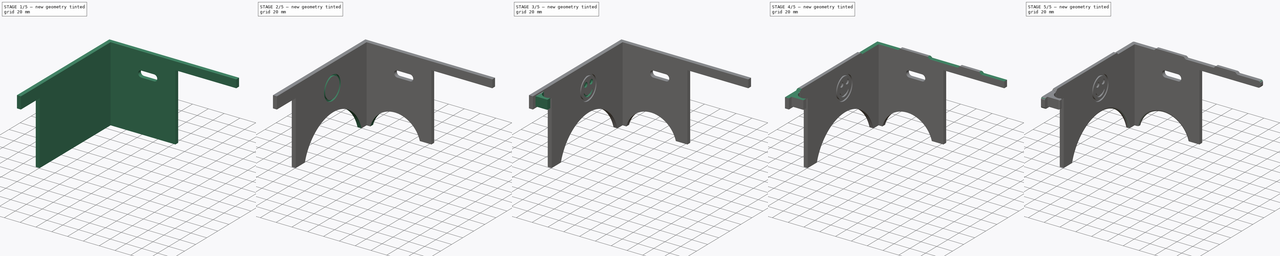
[diagram: build sequence overview — one tinted view per stage of 5, left to right]
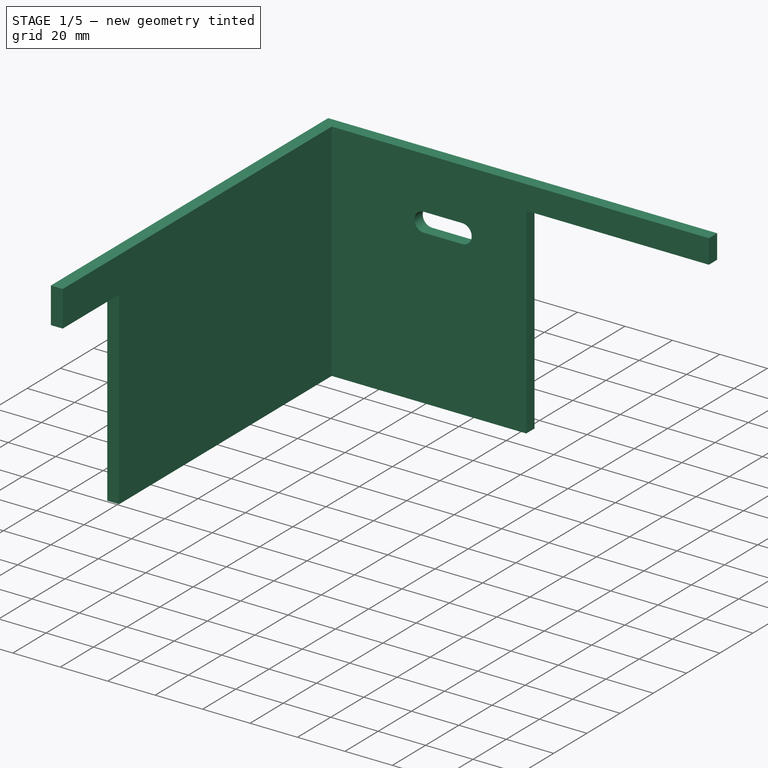
[diagram: stage 1 of 5 — iso view after this stage's code; geometry added in this stage tinted green]
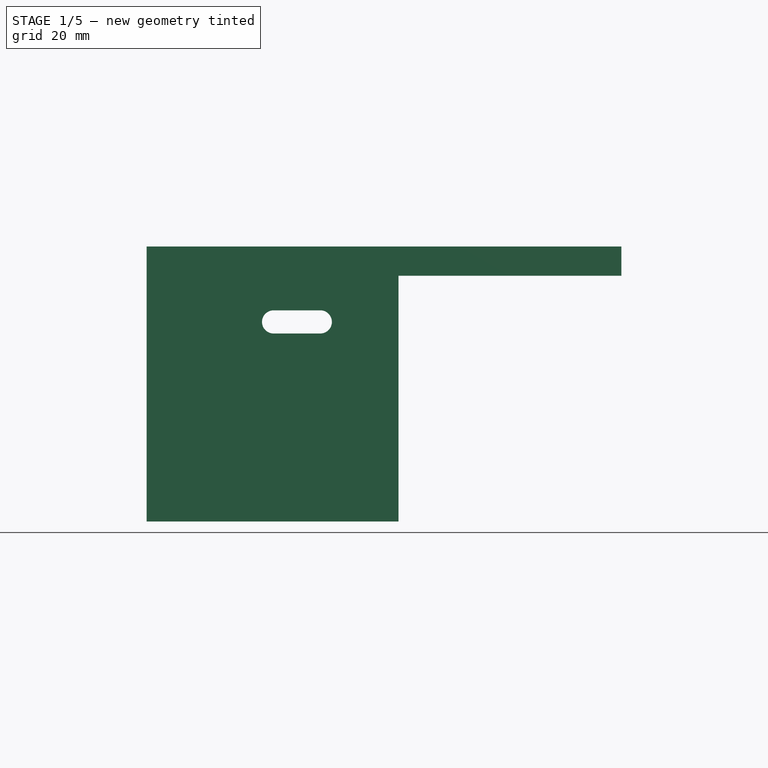
[diagram: stage 1 of 5 — front view after this stage's code; geometry added in this stage tinted green]
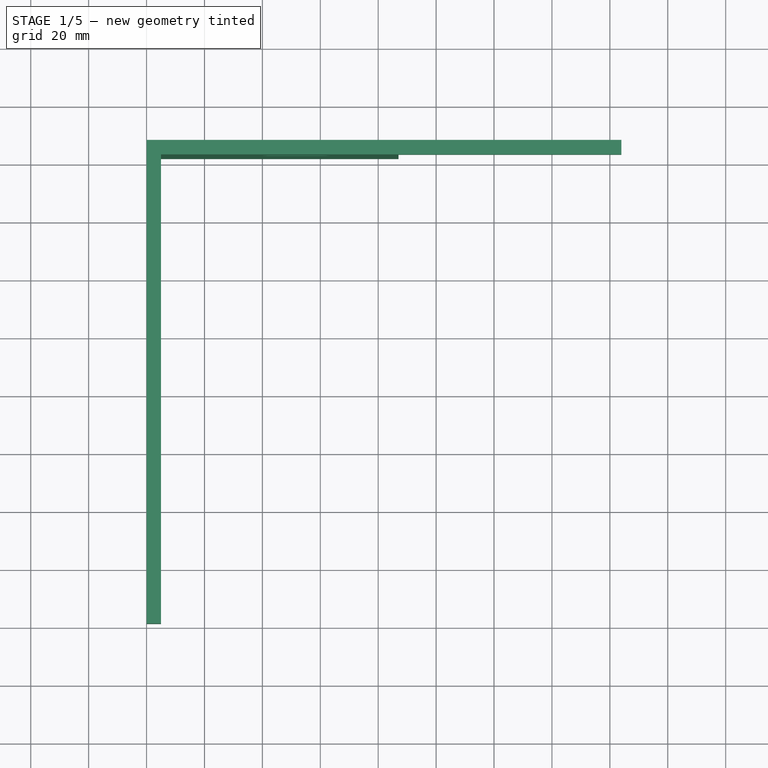
[diagram: stage 1 of 5 — top view after this stage's code; geometry added in this stage tinted green]
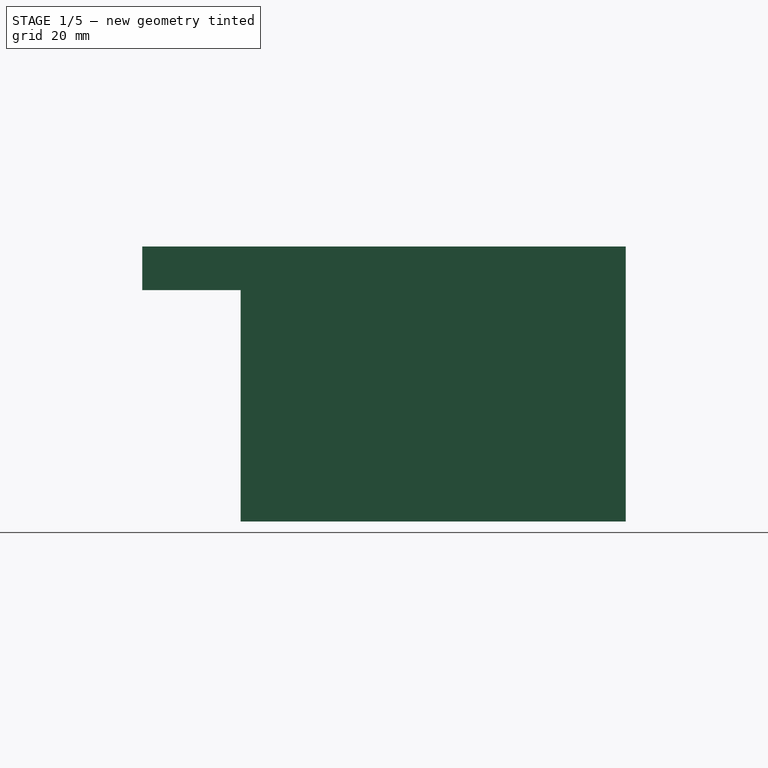
[diagram: stage 1 of 5 — right view after this stage's code; geometry added in this stage tinted green]
FCSTD DOCUMENT  (FreeCAD 0.17R8489 (Git))
Label: Taz6_Control_Box_Tie_Down_Jig_v1.1
License: All rights reserved
LicenseURL: http://en.wikipedia.org/wiki/All_rights_reserved
objects: Sketcher::SketchObject×13, PartDesign::Pocket×12, PartDesign::Fillet×5, PartDesign::Pad×2, Part::Part2DObjectPython×1, PartDesign::Chamfer×1, PartDesign::Body×1
note: 49 computed .brp shape members not serialized (recipe doc carries the construction recipe); baked Part::Feature solids carry a one-line shape summary decoded from their .brp

FEATURE [Sketcher::SketchObject] Sketch
  MapMode = 5
  Support = -> [XY_Plane]
  sketch-geometry (6):
    g0: LineSegment StartX=0 StartY=0 StartZ=0 EndX=5 EndY=0 EndZ=0
    g1: LineSegment StartX=5 StartY=0 StartZ=0 EndX=5 EndY=162 EndZ=0
    g2: LineSegment StartX=0 StartY=167 StartZ=0 EndX=0 EndY=0 EndZ=0
    g3: LineSegment StartX=0 StartY=167 StartZ=0 EndX=164 EndY=167 EndZ=0
    g4: LineSegment StartX=164 StartY=167 StartZ=0 EndX=164 EndY=162 EndZ=0
    g5: LineSegment StartX=164 StartY=162 StartZ=0 EndX=5 EndY=162 EndZ=0
  constraints (17):
    c: Coincident(g0,g1)
    c: Coincident(g2,g0)
    c: Horizontal(g0)
    c: Vertical(g1)
    c: Vertical(g2)
    c: Distance(g2) = 167
    c: Coincident(g0,g-1)
    c: Distance(g0) = 5
    c: Coincident(g3,g4)
    c: Coincident(g4,g5)
    c: Horizontal(g3)
    c: Horizontal(g5)
    c: Vertical(g4)
    c: Distance(g4) = 5
    c: Coincident(g1,g5)
    c: Coincident(g2,g3)
    c: Distance(g3) = 164
FEATURE [PartDesign::Pad] Pad
  Length = 95
  Length2 = 100
  Profile = -> Sketch
  Type = 0
FEATURE [Sketcher::SketchObject] Sketch001
  MapMode = 5
  Placement = pos=(0,0,0) rot=(0.57735,-0.57735,-0.57735;2.0944rad)
  Support = -> [Pad]
  sketch-geometry (4):
    g0: LineSegment StartX=1 StartY=79.91 StartZ=0 EndX=-34 EndY=79.91 EndZ=0
    g1: LineSegment StartX=-34 StartY=79.91 StartZ=0 EndX=-34 EndY=-10.09 EndZ=0
    g2: LineSegment StartX=-34 StartY=-10.09 StartZ=0 EndX=1 EndY=-10.09 EndZ=0
    g3: LineSegment StartX=1 StartY=-10.09 StartZ=0 EndX=1 EndY=79.91 EndZ=0
  constraints (12):
    c: Coincident(g0,g1)
    c: Coincident(g1,g2)
    c: Coincident(g2,g3)
    c: Coincident(g3,g0)
    c: Horizontal(g0)
    c: Horizontal(g2)
    c: Vertical(g1)
    c: Vertical(g3)
    c: Distance(g0) = 35
    c: Distance(g1) = 90
    c: DistanceX(g0) = -34
    c: DistanceY(g0) = 79.91
FEATURE [PartDesign::Pocket] Pocket
  Length = 5
  Profile = -> Sketch001
  Type = 0
FEATURE [Sketcher::SketchObject] Sketch002
  MapMode = 5
  Placement = pos=(0,162,0) rot=(1,0,0;1.5708rad)
  Support = -> [Pocket]
  sketch-geometry (4):
    g0: LineSegment StartX=167 StartY=84.89 StartZ=0 EndX=87 EndY=84.89 EndZ=0
    g1: LineSegment StartX=87 StartY=84.89 StartZ=0 EndX=87 EndY=-10.11 EndZ=0
    g2: LineSegment StartX=87 StartY=-10.11 StartZ=0 EndX=167 EndY=-10.11 EndZ=0
    g3: LineSegment StartX=167 StartY=-10.11 StartZ=0 EndX=167 EndY=84.89 EndZ=0
  constraints (12):
    c: Coincident(g0,g1)
    c: Coincident(g1,g2)
    c: Coincident(g2,g3)
    c: Coincident(g3,g0)
    c: Horizontal(g0)
    c: Horizontal(g2)
    c: Vertical(g1)
    c: Vertical(g3)
    c: Distance(g3) = 95
    c: Distance(g0) = 80
    c: DistanceX(g0) = 87
    c: DistanceY(g0) = 84.89
FEATURE [PartDesign::Pocket] Pocket001
  BaseFeature = -> Pocket
  Length = 5
  Profile = -> Sketch002
  Type = 0
FEATURE [Sketcher::SketchObject] Sketch003
  MapMode = 5
  Placement = pos=(0,167,0) rot=(0,0.707107,0.707107;3.14159rad)
  sketch-geometry (4):
    g0: ArcOfCircle CenterX=-60 CenterY=68.94 CenterZ=0 NormalX=0 NormalY=0 NormalZ=1 Radius=4 StartAngle=1.57079 EndAngle=4.71239
    g1: ArcOfCircle CenterX=-43.869 CenterY=68.94 CenterZ=0 NormalX=0 NormalY=0 NormalZ=1 Radius=4 StartAngle=4.71239 EndAngle=7.85398
    g2: LineSegment StartX=-60 StartY=72.94 StartZ=0 EndX=-43.869 EndY=72.94 EndZ=0
    g3: LineSegment StartX=-43.869 StartY=64.94 StartZ=0 EndX=-60 EndY=64.94 EndZ=0
  constraints (13):
    c: Radius(g1) = 4
    c: Radius(g0) = 4
    c: Horizontal(g2)
    c: Tangent(g2,g1)
    c: Horizontal(g3)
    c: Tangent(g3,g1)
    c: DistanceX(g0) = -60
    c: DistanceY(g0) = 68.94
    c: Equal(g3,g2)
    c: Coincident(g0,g2)
    c: Coincident(g0,g3)
    c: Coincident(g1,g3)
    c: Coincident(g1,g2)
FEATURE [Part::Part2DObjectPython] ShapeString  # Draft 2D object (typed FeaturePython)
  FontFile = <userpath>/Desktop/Titillium-BoldUpright.otf
  Placement = pos=(0,153.4,67) rot=(0.57735,-0.57735,-0.57735;2.0944rad)
  Size = 3
  String = TAZ6_Control_Box_Tie_Down_Jig
  Tracking = 0
FEATURE [PartDesign::Pocket] Pocket002
  BaseFeature = -> Pocket001
  Length = 5
  Profile = -> Sketch003
  Type = 0
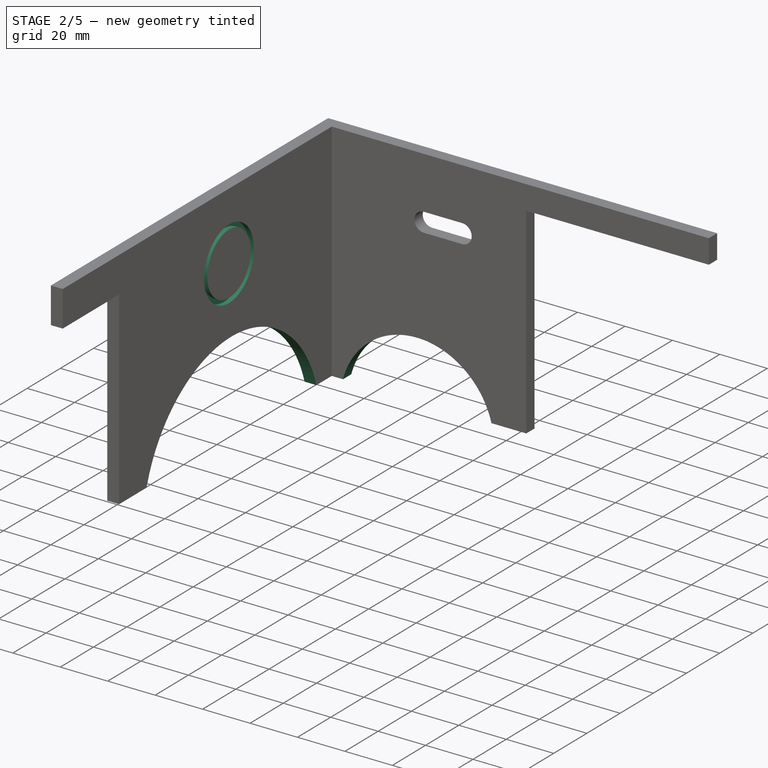
[diagram: stage 2 of 5 — iso view after this stage's code; geometry added in this stage tinted green]
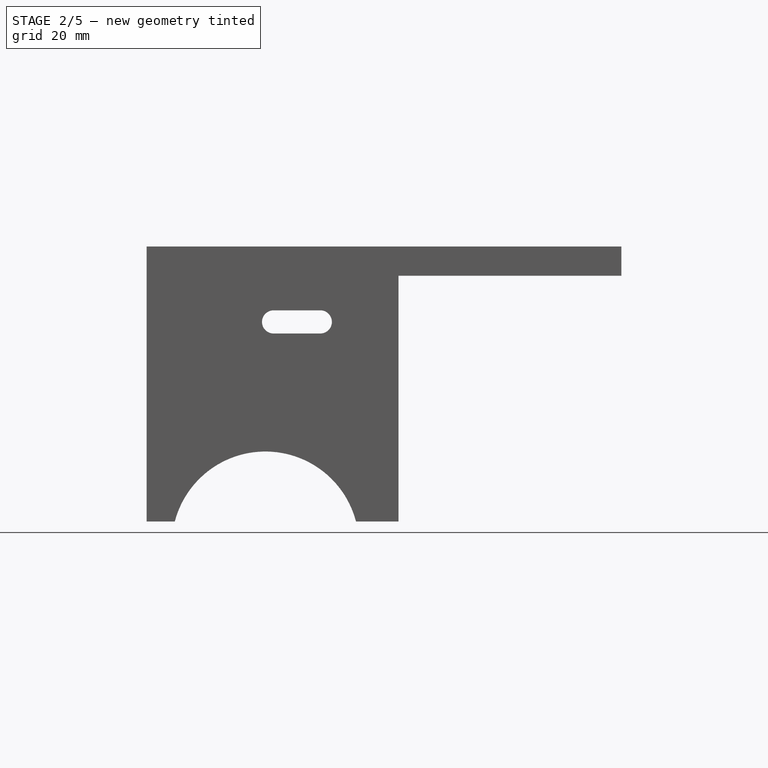
[diagram: stage 2 of 5 — front view after this stage's code; geometry added in this stage tinted green]
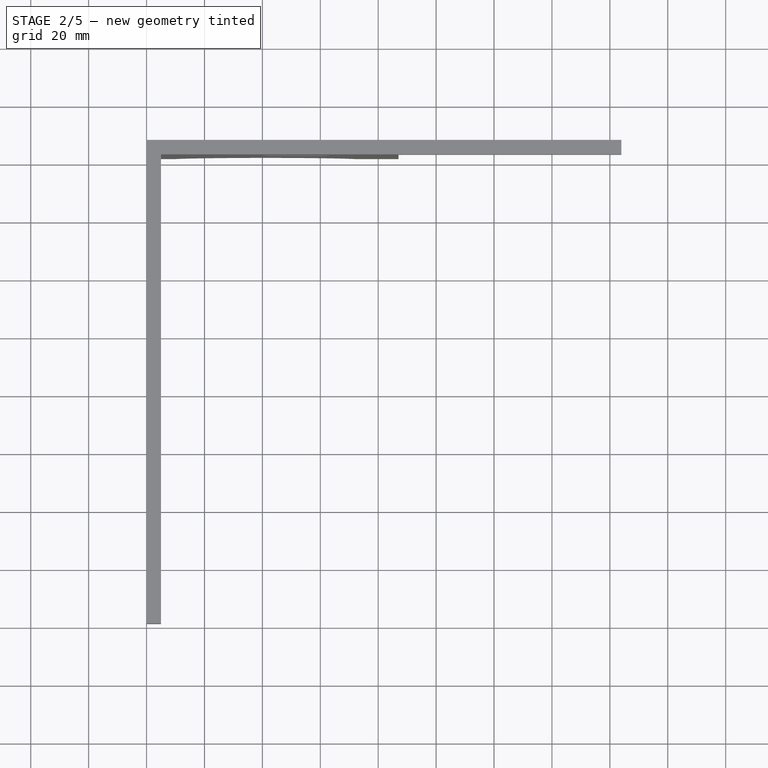
[diagram: stage 2 of 5 — top view after this stage's code; geometry added in this stage tinted green]
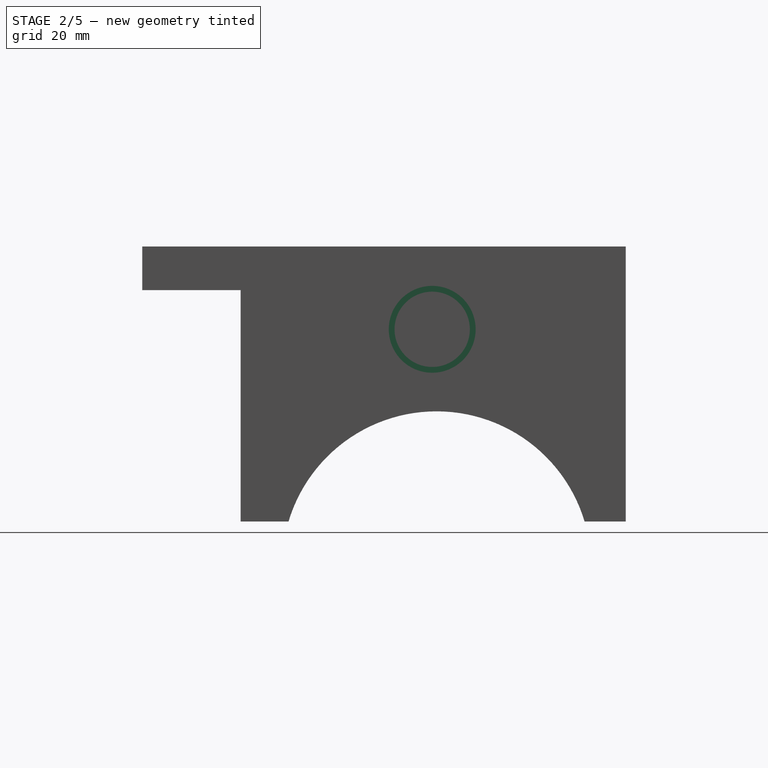
[diagram: stage 2 of 5 — right view after this stage's code; geometry added in this stage tinted green]
FEATURE [PartDesign::Pocket] Pocket003
  BaseFeature = -> Pocket002
  Length = 2
  Profile = -> ShapeString
  Type = 0
FEATURE [Sketcher::SketchObject] Sketch004
  MapMode = 5
  Placement = pos=(0,167,0) rot=(0,0.707107,0.707107;3.14159rad)
  Support = -> [Pocket003]
  sketch-geometry (1):
    g0: Circle CenterX=-41.0416 CenterY=-8.14889 CenterZ=0 NormalX=0 NormalY=0 NormalZ=1 Radius=32.3334
FEATURE [PartDesign::Pocket] Pocket004
  BaseFeature = -> Pocket003
  Length = 5
  Profile = -> Sketch004
  Type = 0
FEATURE [Sketcher::SketchObject] Sketch005
  MapMode = 5
  Placement = pos=(0,0,0) rot=(0.57735,-0.57735,-0.57735;2.0944rad)
  Support = -> [Pocket004]
  sketch-geometry (1):
    g0: Circle CenterX=-101.652 CenterY=-15.3171 CenterZ=0 NormalX=0 NormalY=0 NormalZ=1 Radius=53.377
FEATURE [PartDesign::Pocket] Pocket005
  BaseFeature = -> Pocket004
  Length = 5
  Profile = -> Sketch005
  Type = 0
FEATURE [Sketcher::SketchObject] Sketch006
  MapMode = 5
  Placement = pos=(5,0,0) rot=(0.57735,0.57735,0.57735;2.0944rad)
  Support = -> [Pocket005]
  sketch-geometry (2):
    g0: Circle CenterX=100.147 CenterY=66.3891 CenterZ=0 NormalX=0 NormalY=0 NormalZ=1 Radius=15
    g1: Circle CenterX=100.147 CenterY=66.3891 CenterZ=0 NormalX=0 NormalY=0 NormalZ=1 Radius=13
  constraints (3):
    c: Coincident(g1,g0)
    c: Radius(g1) = 13
    c: Radius(g0) = 15
FEATURE [PartDesign::Pocket] Pocket006
  BaseFeature = -> Pocket005
  Length = 2
  Profile = -> Sketch006
  Type = 0
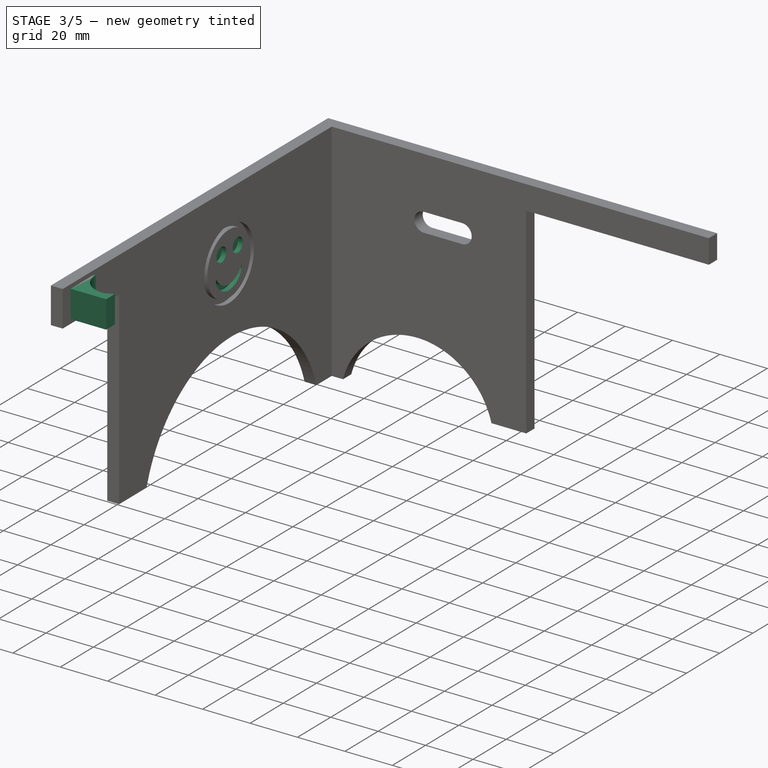
[diagram: stage 3 of 5 — iso view after this stage's code; geometry added in this stage tinted green]
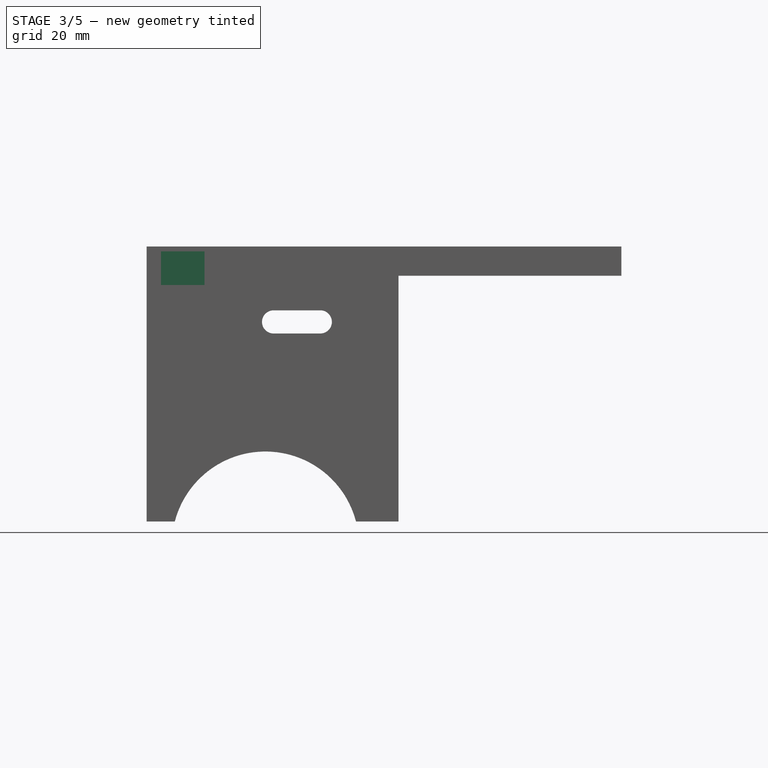
[diagram: stage 3 of 5 — front view after this stage's code; geometry added in this stage tinted green]
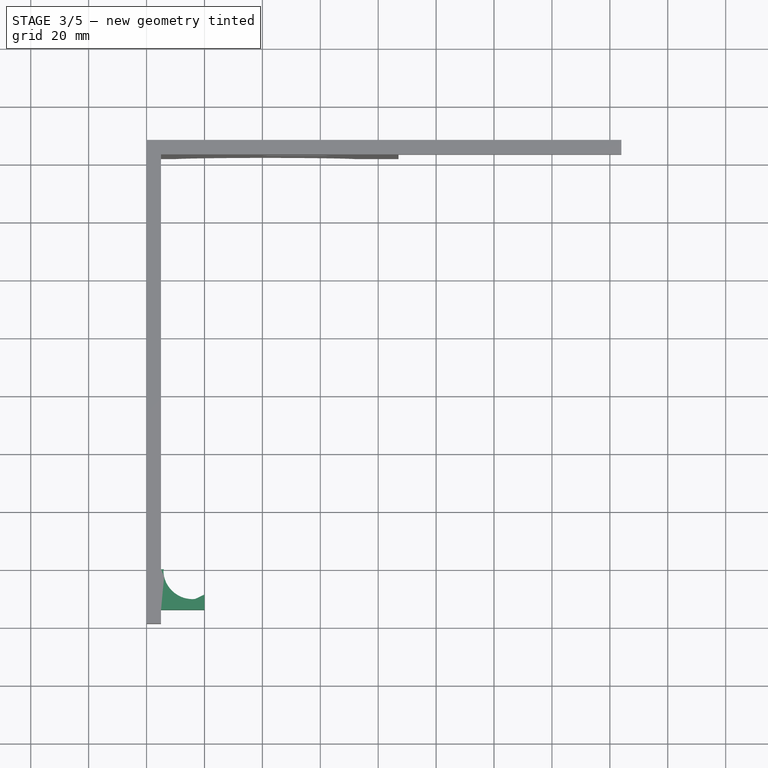
[diagram: stage 3 of 5 — top view after this stage's code; geometry added in this stage tinted green]
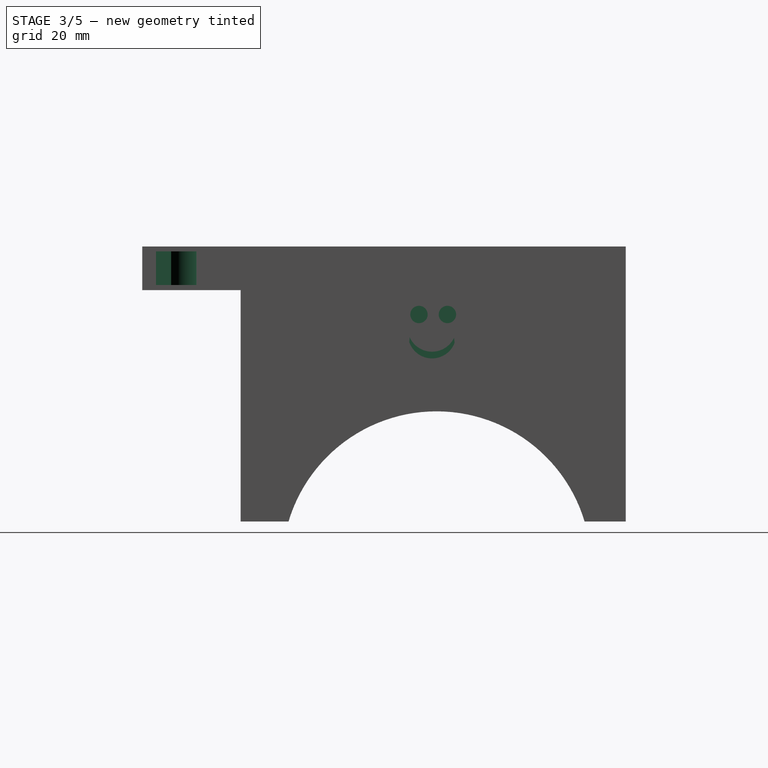
[diagram: stage 3 of 5 — right view after this stage's code; geometry added in this stage tinted green]
FEATURE [Sketcher::SketchObject] Sketch007
  MapMode = 5
  Placement = pos=(5,0,0) rot=(0.57735,0.57735,0.57735;2.0944rad)
  Support = -> [Pocket006]
  sketch-geometry (2):
    g0: Circle CenterX=95.5761 CenterY=71.5089 CenterZ=0 NormalX=0 NormalY=0 NormalZ=1 Radius=3
    g1: Circle CenterX=105.402 CenterY=71.5089 CenterZ=0 NormalX=0 NormalY=0 NormalZ=1 Radius=3
  constraints (2):
    c: Radius(g0) = 3
    c: Equal(g1,g0)
FEATURE [PartDesign::Pocket] Pocket007
  BaseFeature = -> Pocket006
  Length = 2
  Profile = -> Sketch007
  Type = 0
FEATURE [Sketcher::SketchObject] Sketch008
  MapMode = 5
  Placement = pos=(5,0,0) rot=(0.57735,0.57735,0.57735;2.0944rad)
  Support = -> [Pocket007]
  sketch-geometry (4):
    g0: ArcOfCircle CenterX=100.072 CenterY=67.1014 CenterZ=0 NormalX=0 NormalY=0 NormalZ=1 Radius=8.44564 StartAngle=3.56998 EndAngle=5.84147
    g1: ArcOfCircle CenterX=100.099 CenterY=64.6652 CenterZ=0 NormalX=0 NormalY=0 NormalZ=1 Radius=8.32346 StartAngle=3.4691 EndAngle=5.923
    g2: LineSegment StartX=92.2182 StartY=61.9878 StartZ=0 EndX=92.3894 EndY=63.593 EndZ=0
    g3: LineSegment StartX=107.707 StartY=63.4909 StartZ=0 EndX=107.889 EndY=61.7316 EndZ=0
  constraints (4):
    c: Coincident(g2,g1)
    c: Coincident(g2,g0)
    c: Coincident(g3,g0)
    c: Coincident(g3,g1)
FEATURE [PartDesign::Pocket] Pocket008
  BaseFeature = -> Pocket007
  Length = 2
  Profile = -> Sketch008
  Type = 0
FEATURE [Sketcher::SketchObject] Sketch009
  MapMode = 5
  Placement = pos=(5,0,0) rot=(0.57735,0.57735,0.57735;2.0944rad)
  sketch-geometry (4):
    g0: LineSegment StartX=4.75704 StartY=93.2874 StartZ=0 EndX=18.7338 EndY=93.2874 EndZ=0
    g1: LineSegment StartX=18.7338 StartY=93.2874 StartZ=0 EndX=18.7338 EndY=81.6969 EndZ=0
    g2: LineSegment StartX=18.7338 StartY=81.6969 StartZ=0 EndX=4.75704 EndY=81.6969 EndZ=0
    g3: LineSegment StartX=4.75704 StartY=81.6969 StartZ=0 EndX=4.75704 EndY=93.2874 EndZ=0
  constraints (8):
    c: Coincident(g0,g1)
    c: Coincident(g1,g2)
    c: Coincident(g2,g3)
    c: Coincident(g3,g0)
    c: Horizontal(g0)
    c: Horizontal(g2)
    c: Vertical(g1)
    c: Vertical(g3)
FEATURE [Sketcher::SketchObject] Sketch010
  MapMode = 5
  Placement = pos=(0,0,81.6969) rot=(1,0,0;3.14159rad)
  sketch-geometry (4):
    g0: LineSegment StartX=20.3565 StartY=-10.1465 StartZ=0 EndX=30.8333 EndY=-29.8175 EndZ=0
    g1: ArcOfCircle CenterX=15.8488 CenterY=-18.4439 CenterZ=0 NormalX=0 NormalY=0 NormalZ=1 Radius=10.0398 StartAngle=1.48389 EndAngle=3.16401
    g2: LineSegment StartX=16.7203 StartY=-8.442 StartZ=0 EndX=20.3565 EndY=-10.1465 EndZ=0
    g3: LineSegment StartX=30.8333 StartY=-29.8175 StartZ=0 EndX=5.81156 EndY=-18.6689 EndZ=0
  constraints (4):
    c: Coincident(g2,g0)
    c: Coincident(g3,g0)
    c: Coincident(g1,g3)
    c: Coincident(g1,g2)
FEATURE [PartDesign::Pad] Pad001
  BaseFeature = -> Pocket008
  Length = 15
  Length2 = 100
  Profile = -> Sketch009
  Type = 0
FEATURE [PartDesign::Pocket] Pocket009
  BaseFeature = -> Pad001
  Length = 5
  Profile = -> Sketch010
  Type = 1
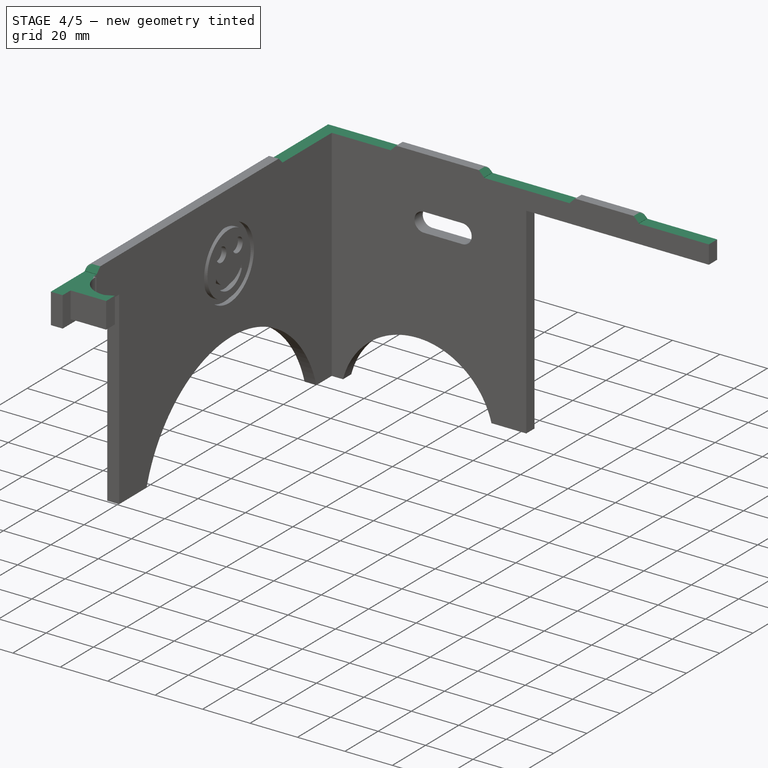
[diagram: stage 4 of 5 — iso view after this stage's code; geometry added in this stage tinted green]
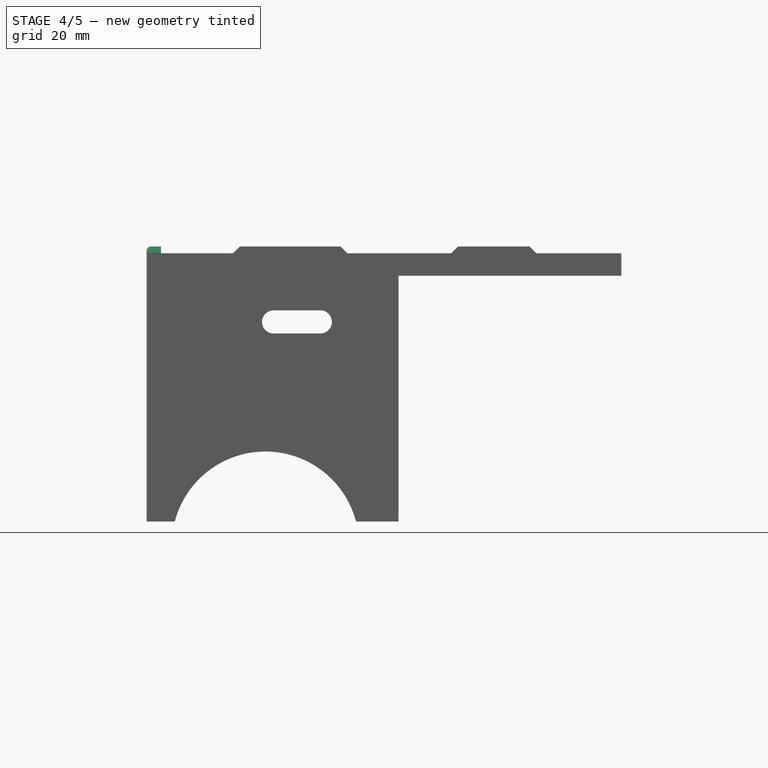
[diagram: stage 4 of 5 — front view after this stage's code; geometry added in this stage tinted green]
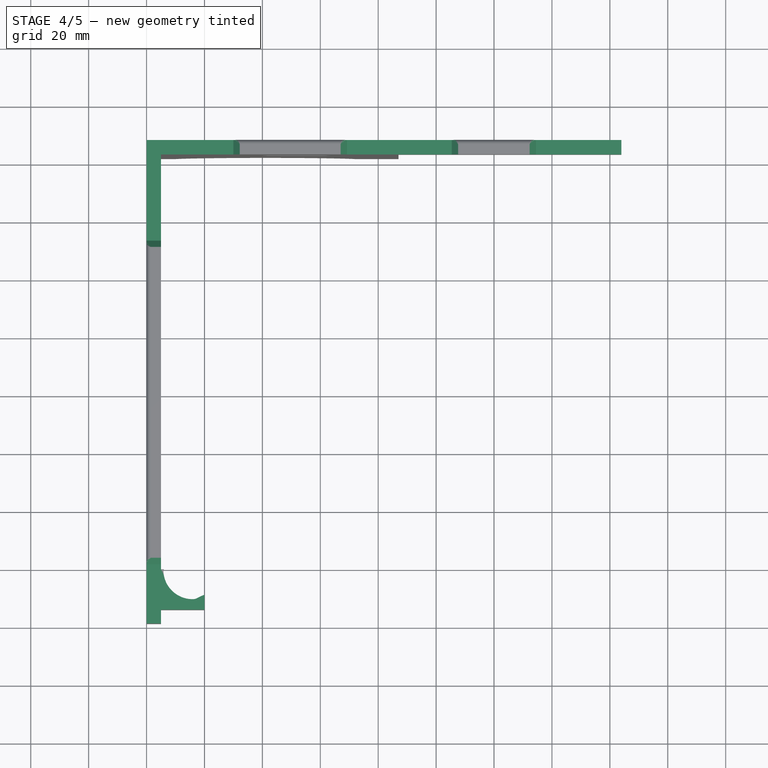
[diagram: stage 4 of 5 — top view after this stage's code; geometry added in this stage tinted green]
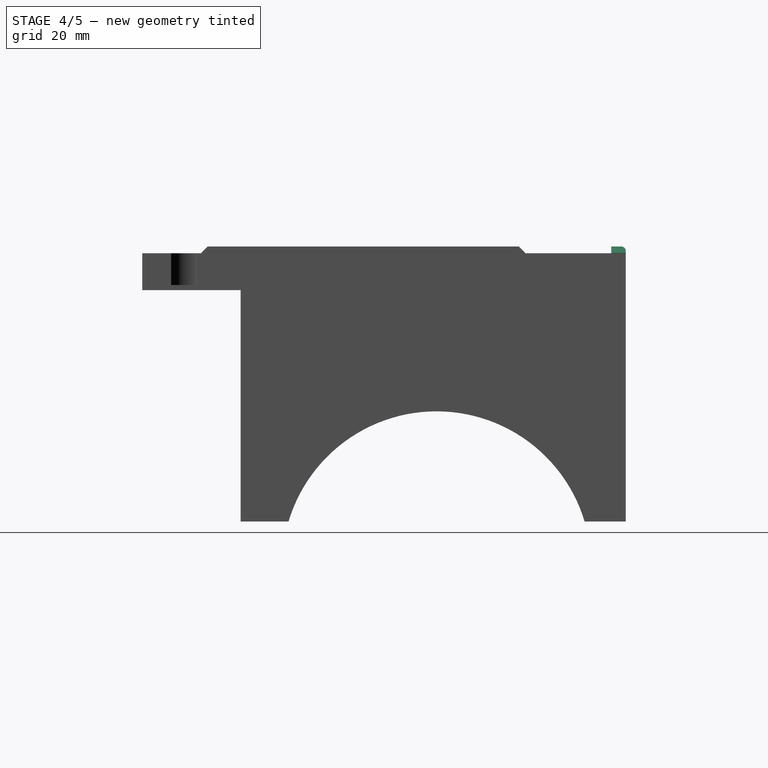
[diagram: stage 4 of 5 — right view after this stage's code; geometry added in this stage tinted green]
FEATURE [Sketcher::SketchObject] Sketch011
  MapMode = 5
  Placement = pos=(0,0,0) rot=(0.57735,-0.57735,-0.57735;2.0944rad)
  Support = -> [Pocket009]
  sketch-geometry (8):
    g0: LineSegment StartX=-167.226 StartY=92.6361 StartZ=0 EndX=-132.226 EndY=92.6361 EndZ=0
    g1: LineSegment StartX=-132.226 StartY=92.6361 StartZ=0 EndX=-132.226 EndY=99.5747 EndZ=0
    g2: LineSegment StartX=-132.226 StartY=99.5747 StartZ=0 EndX=-167.226 EndY=99.5747 EndZ=0
    g3: LineSegment StartX=-167.226 StartY=99.5747 StartZ=0 EndX=-167.226 EndY=92.6361 EndZ=0
    g4: LineSegment StartX=-20.4431 StartY=92.6361 StartZ=0 EndX=34.5569 EndY=92.6361 EndZ=0
    g5: LineSegment StartX=34.5569 StartY=92.6361 StartZ=0 EndX=34.5569 EndY=103.893 EndZ=0
    g6: LineSegment StartX=34.5569 StartY=103.893 StartZ=0 EndX=-20.4431 EndY=103.893 EndZ=0
    g7: LineSegment StartX=-20.4431 StartY=103.893 StartZ=0 EndX=-20.4431 EndY=92.6361 EndZ=0
  constraints (18):
    c: Coincident(g0,g1)
    c: Coincident(g1,g2)
    c: Coincident(g2,g3)
    c: Coincident(g3,g0)
    c: Horizontal(g0)
    c: Horizontal(g2)
    c: Vertical(g1)
    c: Vertical(g3)
    c: Coincident(g4,g5)
    c: Coincident(g5,g6)
    c: Coincident(g6,g7)
    c: Coincident(g7,g4)
    c: Horizontal(g4)
    c: Horizontal(g6)
    c: Vertical(g5)
    c: Vertical(g7)
    c: Distance(g6) = 55
    c: Distance(g2) = 35
FEATURE [PartDesign::Pocket] Pocket010
  BaseFeature = -> Pocket009
  Length = 30
  Profile = -> Sketch011
  Type = 0
FEATURE [Sketcher::SketchObject] Sketch012
  ExternalGeometry = -> [Pocket010]
  MapMode = 5
  Placement = pos=(0,162,0) rot=(1,0,0;1.5708rad)
  Support = -> [Pocket010]
  sketch-geometry (8):
    g0: LineSegment StartX=69.2246 StartY=92.6361 StartZ=0 EndX=105.383 EndY=92.6361 EndZ=0
    g1: LineSegment StartX=105.383 StartY=92.6361 StartZ=0 EndX=105.383 EndY=105.013 EndZ=0
    g2: LineSegment StartX=105.383 StartY=105.013 StartZ=0 EndX=69.2246 EndY=105.013 EndZ=0
    g3: LineSegment StartX=69.2246 StartY=105.013 StartZ=0 EndX=69.2246 EndY=92.6361 EndZ=0
    g4: LineSegment StartX=164.492 StartY=92.6361 StartZ=0 EndX=134.492 EndY=92.6361 EndZ=0
    g5: LineSegment StartX=134.492 StartY=92.6361 StartZ=0 EndX=134.492 EndY=105.46 EndZ=0
    g6: LineSegment StartX=134.492 StartY=105.46 StartZ=0 EndX=164.492 EndY=105.46 EndZ=0
    g7: LineSegment StartX=164.492 StartY=105.46 StartZ=0 EndX=164.492 EndY=92.6361 EndZ=0
  constraints (17):
    c: Coincident(g0,g1)
    c: Coincident(g1,g2)
    c: Coincident(g2,g3)
    c: Coincident(g3,g0)
    c: Horizontal(g0)
    c: Horizontal(g2)
    c: Vertical(g1)
    c: Vertical(g3)
    c: Coincident(g4,g5)
    c: Coincident(g5,g6)
    c: Coincident(g6,g7)
    c: Coincident(g7,g4)
    c: Horizontal(g4)
    c: Horizontal(g6)
    c: Vertical(g5)
    c: Vertical(g7)
    c: Distance(g6) = 30
FEATURE [PartDesign::Pocket] Pocket011
  BaseFeature = -> Pocket010
  Length = 5
  Profile = -> Sketch012
  Type = 0
FEATURE [PartDesign::Chamfer] Chamfer
  Base = -> Pocket011 [Edge801,Edge800,Edge797,Edge796,Edge298,Edge299]
  BaseFeature = -> Pocket011
  Size = 2.2
FEATURE [PartDesign::Fillet] Fillet
  Base = -> Chamfer [Edge30,Edge336,Edge325]
  BaseFeature = -> Chamfer
  Radius = 1.5
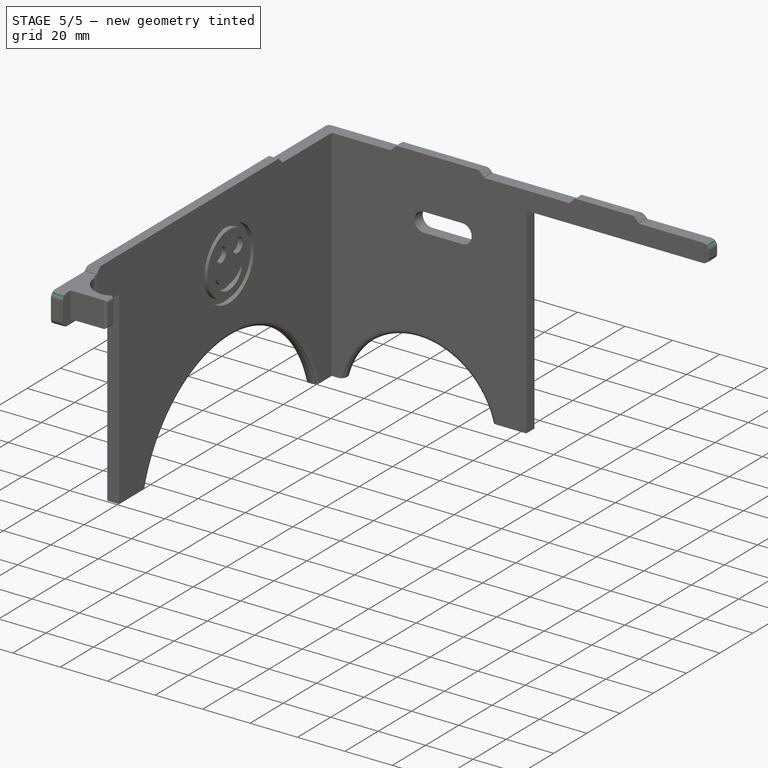
[diagram: stage 5 of 5 — iso view after this stage's code; geometry added in this stage tinted green]
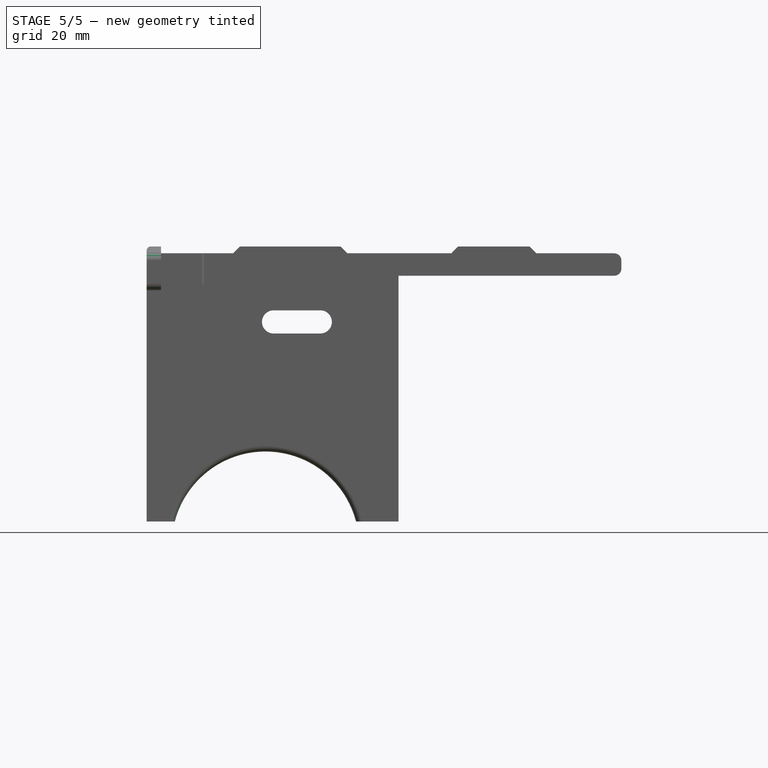
[diagram: stage 5 of 5 — front view after this stage's code; geometry added in this stage tinted green]
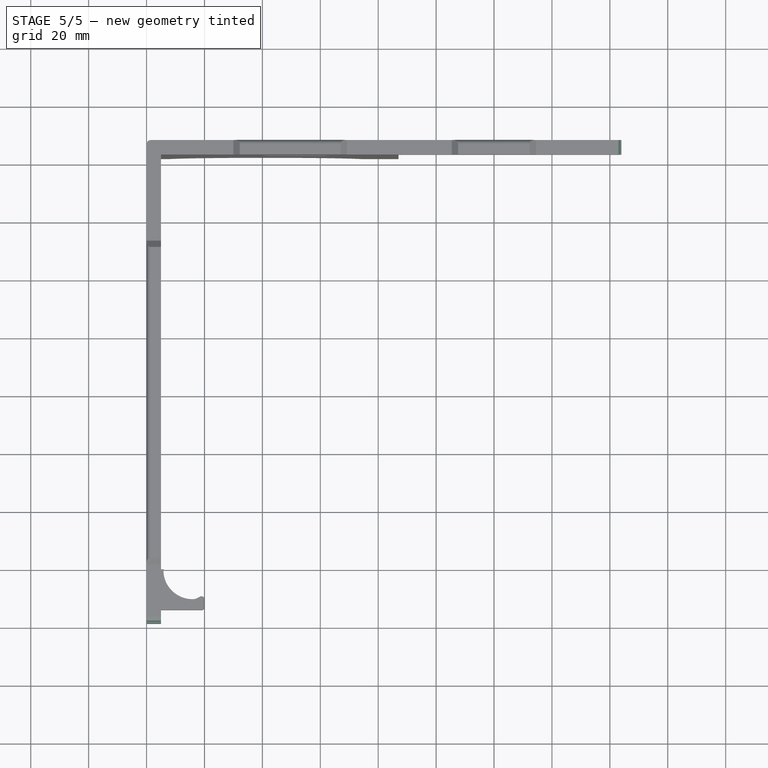
[diagram: stage 5 of 5 — top view after this stage's code; geometry added in this stage tinted green]
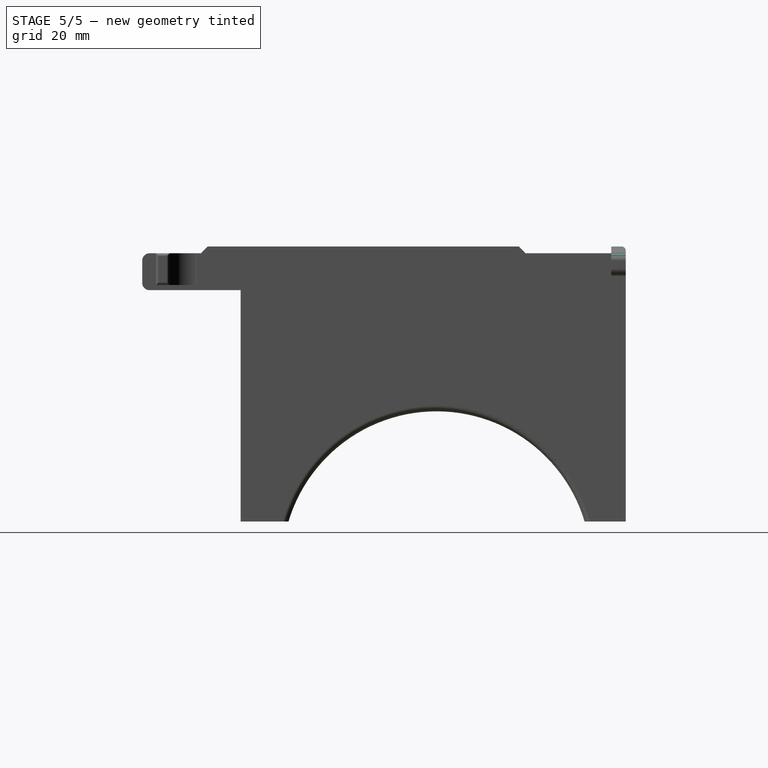
[diagram: stage 5 of 5 — right view after this stage's code; geometry added in this stage tinted green]
FEATURE [PartDesign::Fillet] Fillet001
  Base = -> Fillet [Edge35]
  BaseFeature = -> Fillet
  Radius = 1.5
FEATURE [PartDesign::Fillet] Fillet002
  Base = -> Fillet001 [Edge751,Edge784,Edge264,Edge6]
  BaseFeature = -> Fillet001
  Radius = 2
FEATURE [PartDesign::Fillet] Fillet003
  Base = -> Fillet002 [Edge274,Edge279,Edge879,Edge882]
  BaseFeature = -> Fillet002
  Radius = 2.5
FEATURE [PartDesign::Fillet] Fillet004
  Base = -> Fillet003 [Edge771,Edge270,Edge775,Edge776]
  BaseFeature = -> Fillet003
  Radius = 1
FEATURE [PartDesign::Body] Body
  Model = -> [Sketch,Pad,Sketch001,Pocket,Sketch002,Pocket001,Sketch003,Pocket002,Pocket003,Sketch004,Pocket004,Sketch005,Pocket005,Sketch006,Pocket006,Sketch007,Pocket007,Sketch008,Pocket008,Sketch009,Sketch010,Pad001,Pocket009,Sketch011,Pocket010,Sketch012,Pocket011,Chamfer,Fillet,Fillet001,Fillet002,Fillet003,Fillet004]
  Origin = -> BodyOrigin
  Tip = -> Fillet004
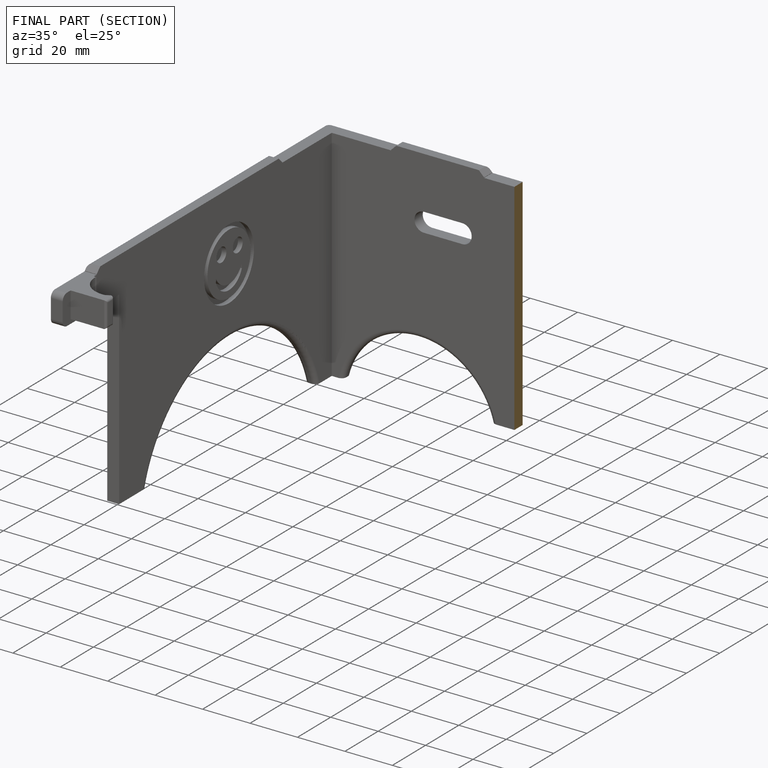
[diagram: finished part — half-section view (interior)]
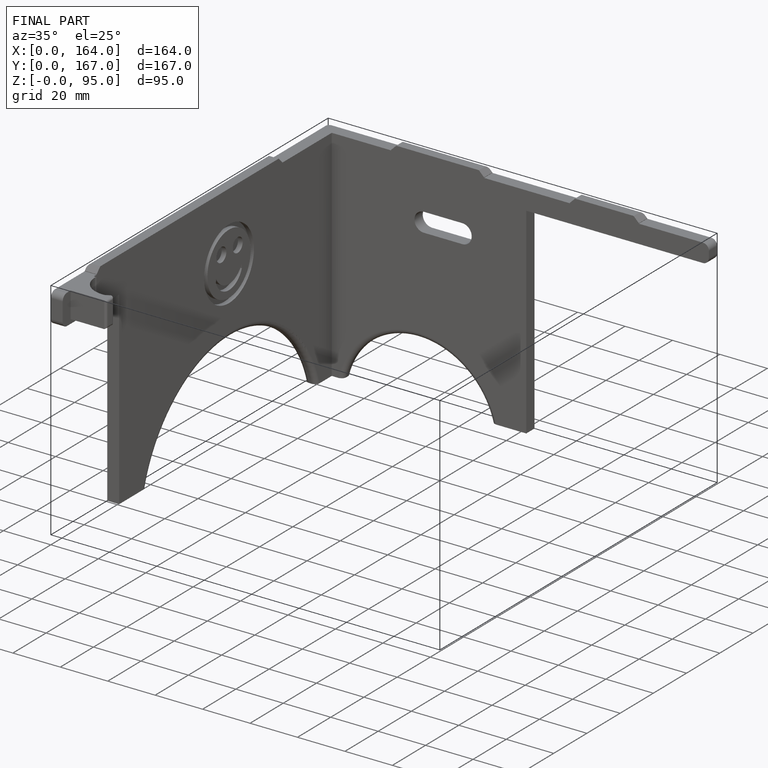
[diagram: finished part — iso view with bounding-box wireframe]
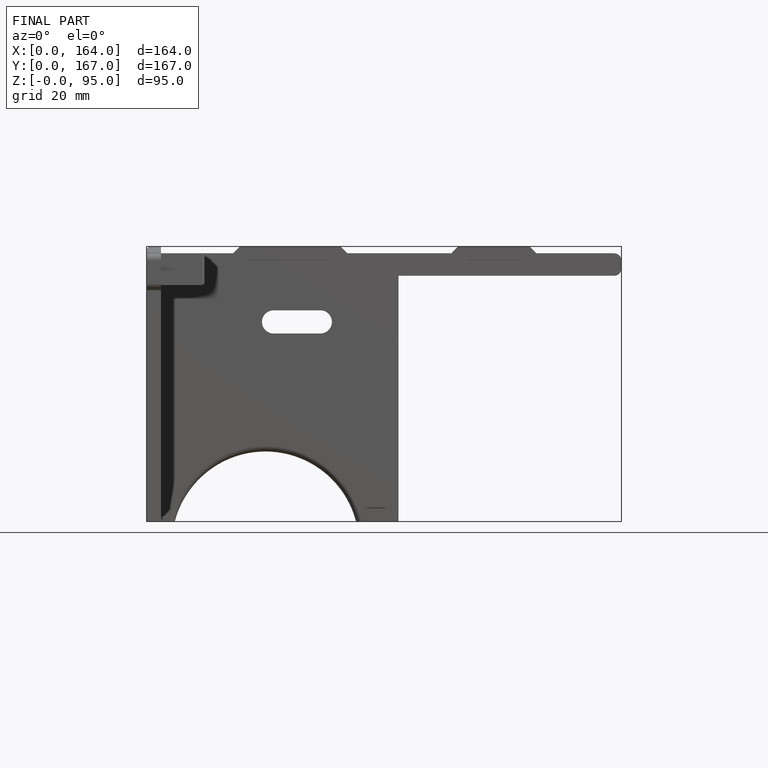
[diagram: finished part — front view with bounding-box wireframe]
